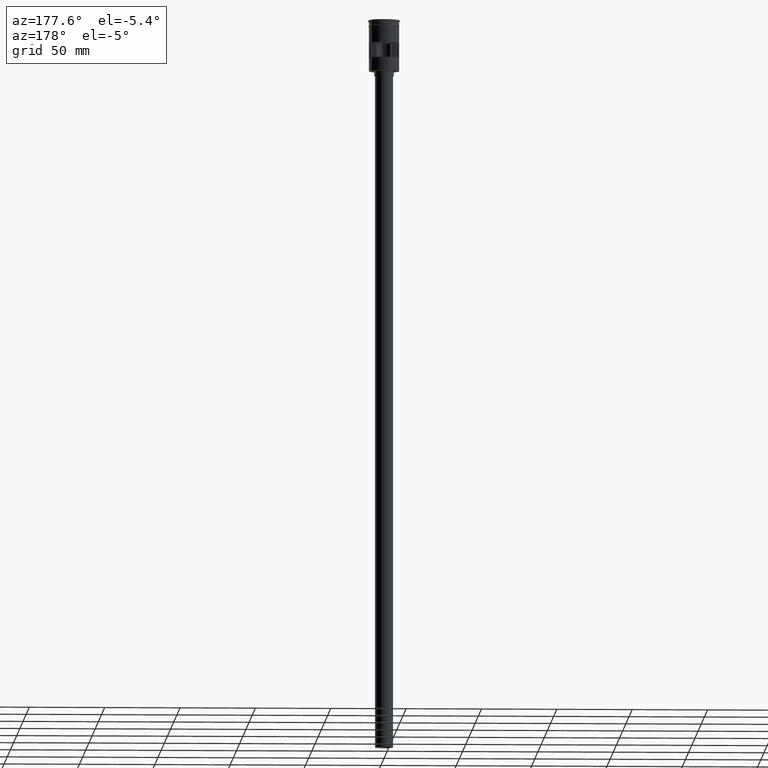
[diagram: clean part render]
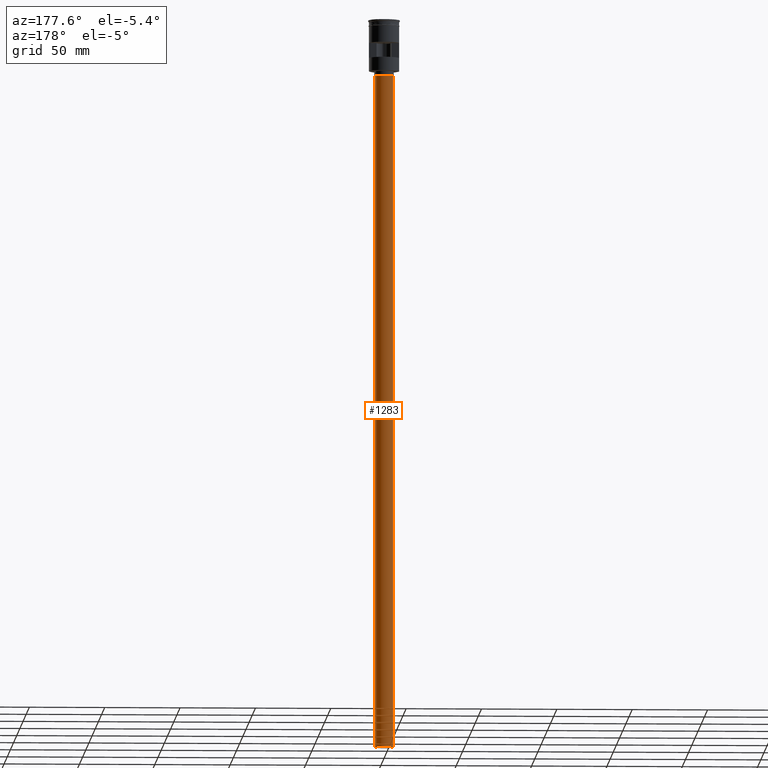
[diagram: same view with one face highlighted and labeled with its STEP entity id]
A machine part, auxiliary view. The second image highlights one B-rep face of the part: STEP entity #1283.
In plain terms, the highlighted cylindrical surface (edge-blend (fillet) strip) has radius 6 mm, axis along (-0, -0, 1).
Its self-contained STEP definition (entity closure, byte-faithful):
#13 = AXIS2_PLACEMENT_3D ( 'NONE', #1546, #833, #445 ) ;
#14 = VERTEX_POINT ( 'NONE', #1516 ) ;
#122 = VERTEX_POINT ( 'NONE', #978 ) ;
#140 = ORIENTED_EDGE ( 'NONE', *, *, #273, .F. ) ;
#197 = DIRECTION ( 'NONE',  ( -0.000000000000000000, -0.000000000000000000, 1.000000000000000000 ) ) ;
#223 = DIRECTION ( 'NONE',  ( -1.000000000000000000, 0.000000000000000000, 0.000000000000000000 ) ) ;
#232 = VECTOR ( 'NONE', #197, 1000.000000000000000 ) ;
#233 = DIRECTION ( 'NONE',  ( -0.000000000000000000, -0.000000000000000000, 1.000000000000000000 ) ) ;
#243 = ORIENTED_EDGE ( 'NONE', *, *, #645, .T. ) ;
#273 = EDGE_CURVE ( 'NONE', #122, #349, #804, .T. ) ;
#349 = VERTEX_POINT ( 'NONE', #1491 ) ;
#370 = DIRECTION ( 'NONE',  ( -0.000000000000000000, -0.000000000000000000, 1.000000000000000000 ) ) ;
#409 = VECTOR ( 'NONE', #370, 1000.000000000000000 ) ;
#420 = CYLINDRICAL_SURFACE ( 'NONE', #1493, 6.000000000000000888 ) ;
#432 = CIRCLE ( 'NONE', #13, 6.000000000000000888 ) ;
#445 = DIRECTION ( 'NONE',  ( -1.000000000000000000, 0.000000000000000000, 0.000000000000000000 ) ) ;
#492 = CARTESIAN_POINT ( 'NONE',  ( -6.000000000000000888, 7.347880794884120722E-16, -484.0000000000000000 ) ) ;
#645 = EDGE_CURVE ( 'NONE', #14, #967, #1492, .T. ) ;
#699 = ORIENTED_EDGE ( 'NONE', *, *, #1305, .T. ) ;
#758 = ORIENTED_EDGE ( 'NONE', *, *, #948, .F. ) ;
#804 = LINE ( 'NONE', #934, #232 ) ;
#833 = DIRECTION ( 'NONE',  ( 0.000000000000000000, 0.000000000000000000, -1.000000000000000000 ) ) ;
#919 = CARTESIAN_POINT ( 'NONE',  ( 0.000000000000000000, 0.000000000000000000, -484.0000000000000000 ) ) ;
#928 = AXIS2_PLACEMENT_3D ( 'NONE', #1096, #1558, #223 ) ;
#934 = CARTESIAN_POINT ( 'NONE',  ( 6.000000000000000888, 0.000000000000000000, -484.0000000000000000 ) ) ;
#948 = EDGE_CURVE ( 'NONE', #14, #122, #432, .T. ) ;
#967 = VERTEX_POINT ( 'NONE', #1573 ) ;
#978 = CARTESIAN_POINT ( 'NONE',  ( 6.000000000000000888, 0.000000000000000000, -484.0000000000000000 ) ) ;
#985 = DIRECTION ( 'NONE',  ( 1.000000000000000000, 0.000000000000000000, 0.000000000000000000 ) ) ;
#1096 = CARTESIAN_POINT ( 'NONE',  ( 0.000000000000000000, 0.000000000000000000, -37.00000000000000000 ) ) ;
#1130 = EDGE_LOOP ( 'NONE', ( #758, #243, #699, #140 ) ) ;
#1283 = ADVANCED_FACE ( 'NONE', ( #1522 ), #420, .T. ) ;
#1305 = EDGE_CURVE ( 'NONE', #967, #349, #1335, .T. ) ;
#1335 = CIRCLE ( 'NONE', #928, 6.000000000000000888 ) ;
#1491 = CARTESIAN_POINT ( 'NONE',  ( 6.000000000000000888, 0.000000000000000000, -37.00000000000000000 ) ) ;
#1492 = LINE ( 'NONE', #492, #409 ) ;
#1493 = AXIS2_PLACEMENT_3D ( 'NONE', #919, #233, #985 ) ;
#1516 = CARTESIAN_POINT ( 'NONE',  ( -6.000000000000000888, 7.347880794884120722E-16, -484.0000000000000000 ) ) ;
#1522 = FACE_OUTER_BOUND ( 'NONE', #1130, .T. ) ;
#1546 = CARTESIAN_POINT ( 'NONE',  ( 0.000000000000000000, 0.000000000000000000, -484.0000000000000000 ) ) ;
#1558 = DIRECTION ( 'NONE',  ( 0.000000000000000000, 0.000000000000000000, -1.000000000000000000 ) ) ;
#1573 = CARTESIAN_POINT ( 'NONE',  ( -6.000000000000000888, 7.347880794884120722E-16, -37.00000000000000000 ) ) ;